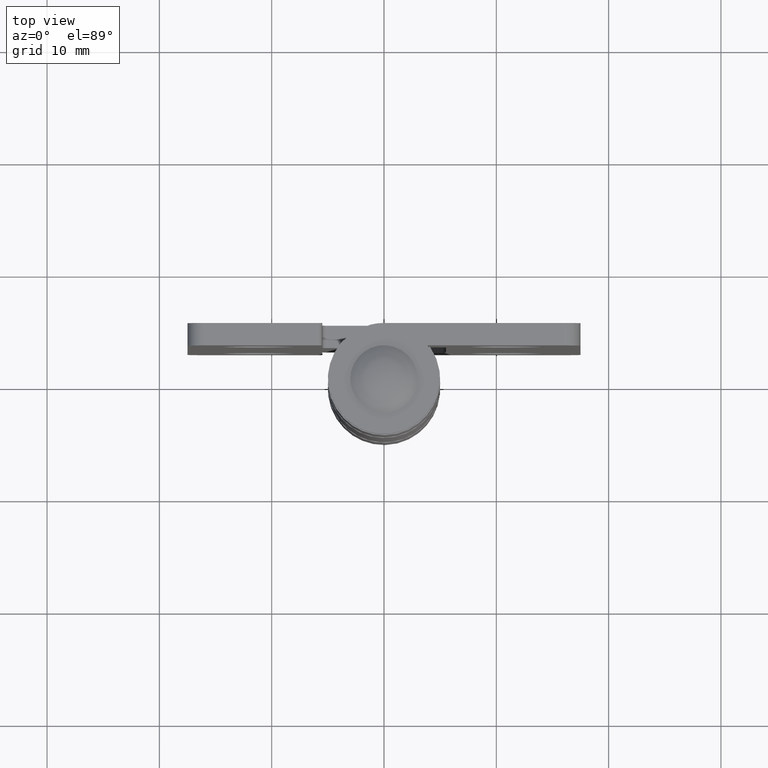
[diagram: clean part render]
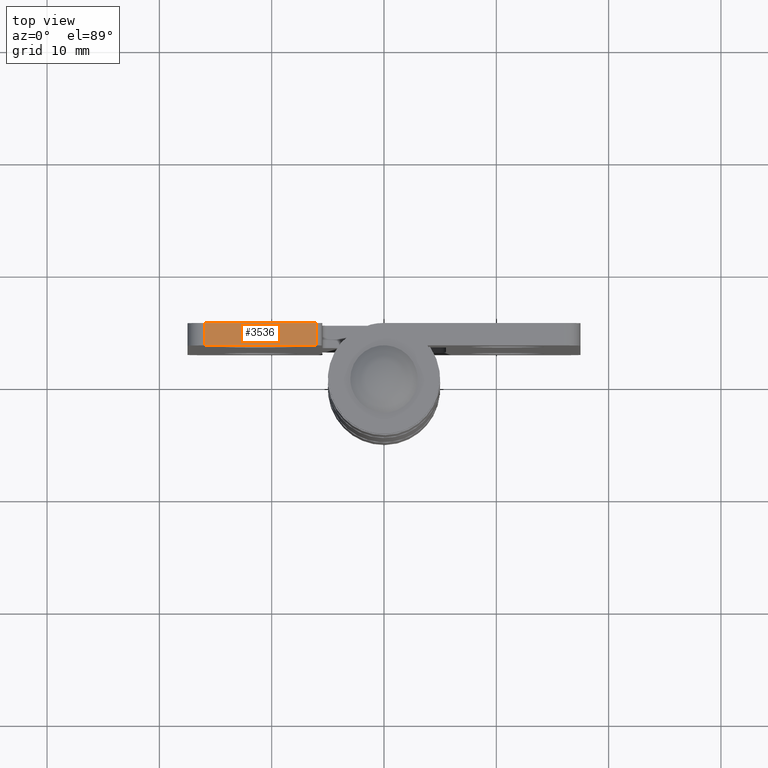
[diagram: same view with one face highlighted and labeled with its STEP entity id]
A machine part, top view. The second image highlights one B-rep face of the part: STEP entity #3536.
In plain terms, the highlighted face is a freeform B-spline surface patch.
Its self-contained STEP definition (entity closure, byte-faithful):
#2965=CARTESIAN_POINT('',(-6.000000000000070,4.999999999997990,50.0));
#2966=VERTEX_POINT('',#2965);
#2982=CARTESIAN_POINT('',(-6.000000000000070,2.999999999999090,50.0));
#2983=VERTEX_POINT('',#2982);
#2984=CARTESIAN_POINT('',(-6.000000000000070,2.999999999999090,50.0));
#2985=CARTESIAN_POINT('',(-6.000000000000070,4.999999999997990,50.0));
#2986=QUASI_UNIFORM_CURVE('',1,(#2984,#2985),.UNSPECIFIED.,.F.,.U.);
#2987=EDGE_CURVE('',#2983,#2966,#2986,.T.);
#3209=CARTESIAN_POINT('',(-15.999999999997250,2.999999999999090,50.0));
#3210=VERTEX_POINT('',#3209);
#3226=CARTESIAN_POINT('',(-15.999999999997250,4.999999999995980,50.0));
#3227=VERTEX_POINT('',#3226);
#3228=CARTESIAN_POINT('',(-15.999999999997250,4.999999999995980,50.0));
#3229=CARTESIAN_POINT('',(-15.999999999997250,2.999999999999090,50.0));
#3230=QUASI_UNIFORM_CURVE('',1,(#3228,#3229),.UNSPECIFIED.,.F.,.U.);
#3231=EDGE_CURVE('',#3227,#3210,#3230,.T.);
#3517=CARTESIAN_POINT('',(-16.499499980615170,2.900100003875533,50.0));
#3518=CARTESIAN_POINT('',(-5.500499751161248,2.900100003875533,50.0));
#3519=CARTESIAN_POINT('',(-16.499499980615170,5.099900049765727,50.0));
#3520=CARTESIAN_POINT('',(-5.500499751161248,5.099900049765727,50.0));
#3521=B_SPLINE_SURFACE_WITH_KNOTS('',1,1,((#3517,#3519),(#3518,#3520)),.UNSPECIFIED.,.F.,.F.,.U.,(2,2),(2,2),(0.0,10.999000229453920),(0.0,2.199800045890195),.UNSPECIFIED.);
#3522=CARTESIAN_POINT('',(-6.000000000000070,2.999999999999090,50.0));
#3523=CARTESIAN_POINT('',(-15.999999999997250,2.999999999999090,50.0));
#3524=QUASI_UNIFORM_CURVE('',1,(#3522,#3523),.UNSPECIFIED.,.F.,.U.);
#3525=EDGE_CURVE('',#2983,#3210,#3524,.T.);
#3526=ORIENTED_EDGE('',*,*,#3525,.F.);
#3527=ORIENTED_EDGE('',*,*,#2987,.T.);
#3528=CARTESIAN_POINT('',(-15.999999999997250,4.999999999995980,50.0));
#3529=CARTESIAN_POINT('',(-6.000000000000070,4.999999999997990,50.0));
#3530=QUASI_UNIFORM_CURVE('',1,(#3528,#3529),.UNSPECIFIED.,.F.,.U.);
#3531=EDGE_CURVE('',#3227,#2966,#3530,.T.);
#3532=ORIENTED_EDGE('',*,*,#3531,.F.);
#3533=ORIENTED_EDGE('',*,*,#3231,.T.);
#3534=EDGE_LOOP('',(#3526,#3527,#3532,#3533));
#3535=FACE_OUTER_BOUND('',#3534,.T.);
#3536=ADVANCED_FACE('',(#3535),#3521,.T.);